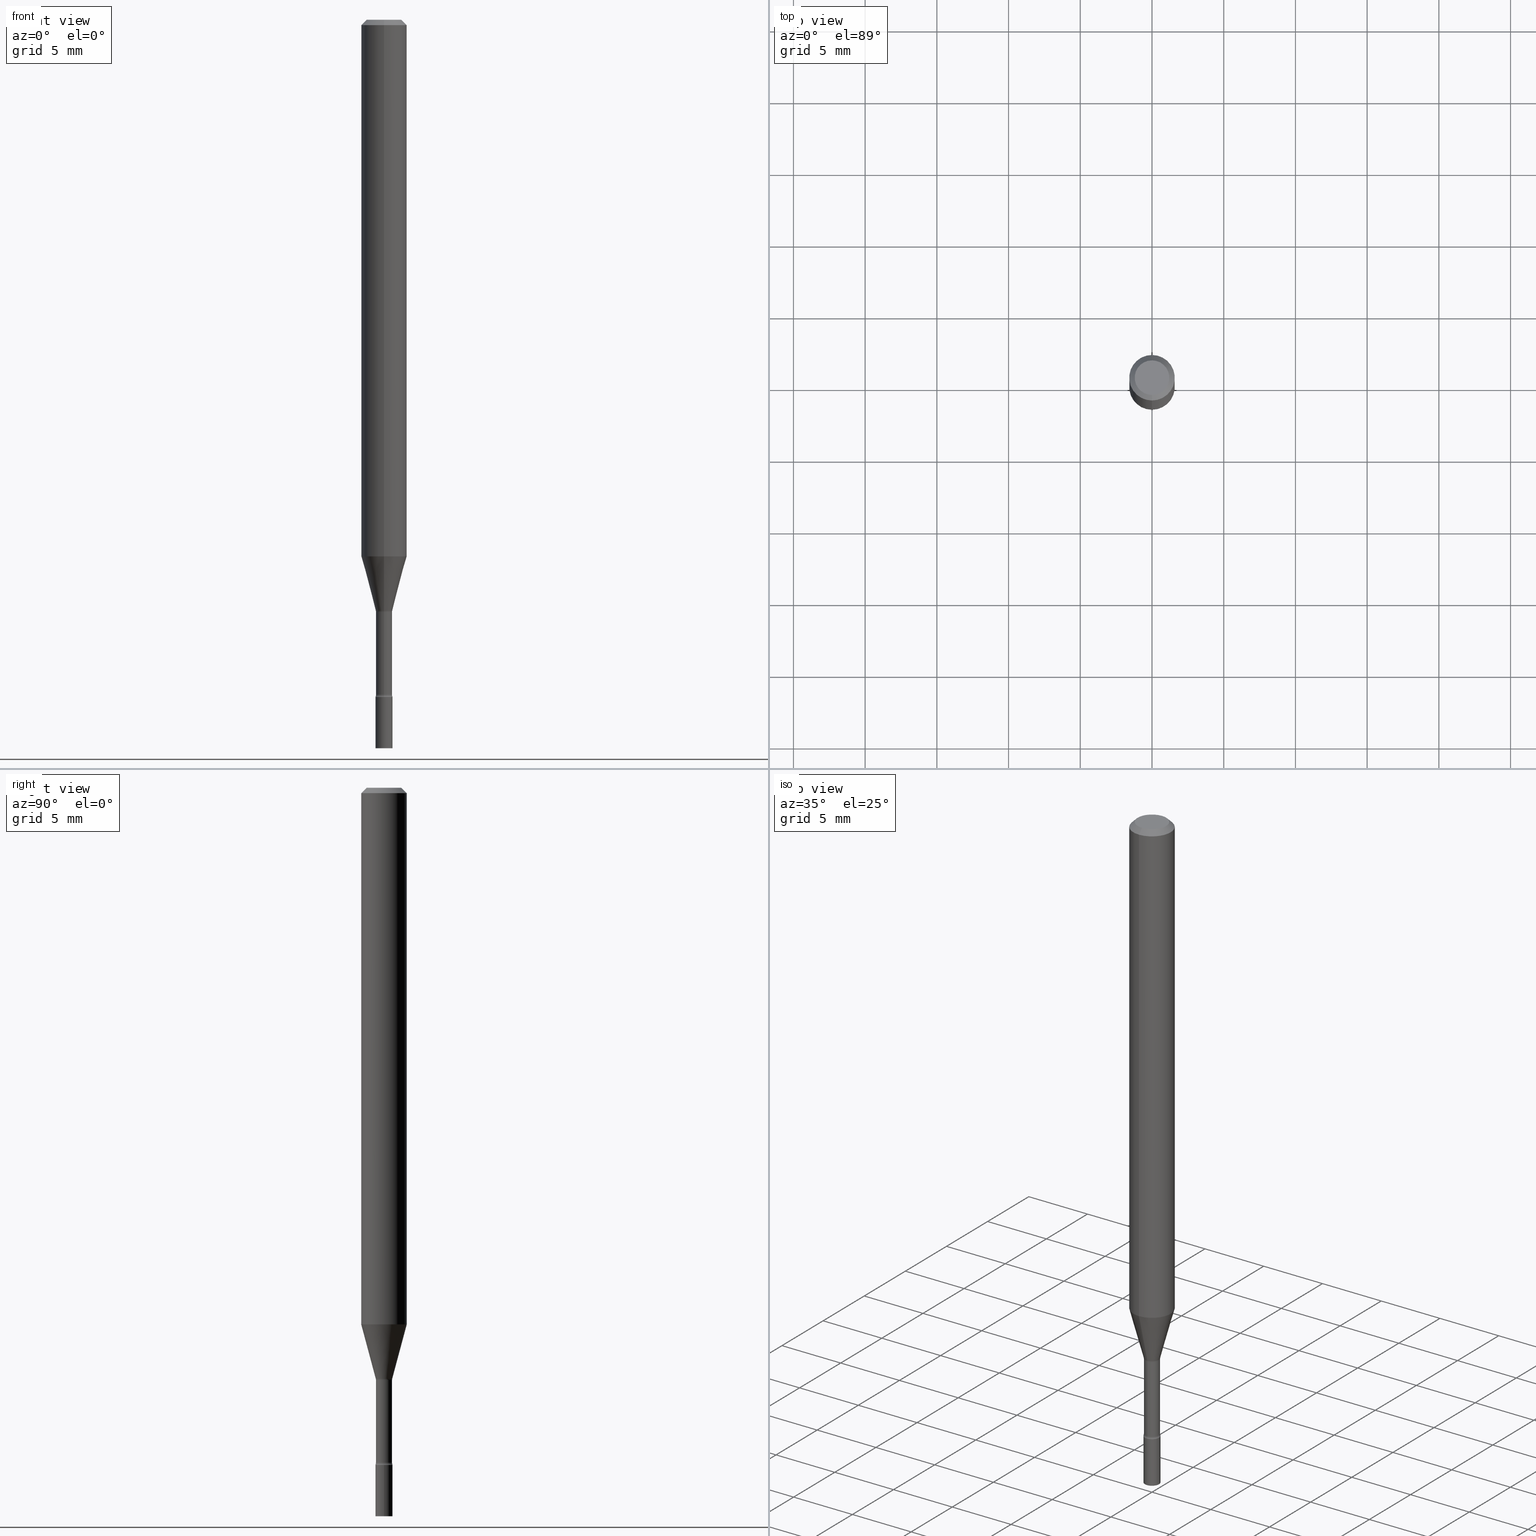
[diagram: canonical four-view strip — front | top / right | iso, engineering-drawing reading convention]
A machine part, canonical four-view strip (front | top / right | iso — engineering-drawing reading convention). The complete STEP part file that produces these views, byte-faithful:
ISO-10303-21;
HEADER;
FILE_DESCRIPTION (( 'STEP AP203' ),
    '1' );
FILE_NAME ('09857.STEP',
    '2024-03-09T02:23:17',
    ( '' ),
    ( '' ),
    'SwSTEP 2.0',
    'SolidWorks 2023',
    '' );
FILE_SCHEMA (( 'CONFIG_CONTROL_DESIGN' ));
ENDSEC;

DATA;
#1 = VECTOR ( 'NONE', #511, 39.37007874015748143 ) ;
#2 = CIRCLE ( 'NONE', #391, 0.02261111260566397996 ) ;
#3 = CARTESIAN_POINT ( 'NONE',  ( -1.543234751768266986E-16, -0.02210000000000567413, -1.625974787463811078 ) ) ;
#4 = DIRECTION ( 'NONE',  ( 1.000000000000000000, -6.982962677686265922E-15, 4.876176775795935793E-29 ) ) ;
#5 = ORIENTED_EDGE ( 'NONE', *, *, #186, .T. ) ;
#6 = FACE_OUTER_BOUND ( 'NONE', #217, .T. ) ;
#7 = ORIENTED_EDGE ( 'NONE', *, *, #470, .F. ) ;
#8 = CONICAL_SURFACE ( 'NONE', #497, 0.06250000000000000000, 0.7853981633974483900 ) ;
#9 = AXIS2_PLACEMENT_3D ( 'NONE', #245, #100, #424 ) ;
#10 = DIRECTION ( 'NONE',  ( 1.000000000000000000, -6.982962677686265922E-15, 4.876176775795935793E-29 ) ) ;
#11 = ORIENTED_EDGE ( 'NONE', *, *, #475, .T. ) ;
#12 = DIRECTION ( 'NONE',  ( -1.000000000000000000, 6.982962677686265922E-15, -4.883557194083112340E-29 ) ) ;
#13 = ORIENTED_EDGE ( 'NONE', *, *, #412, .T. ) ;
#14 = FACE_OUTER_BOUND ( 'NONE', #122, .T. ) ;
#15 = EDGE_LOOP ( 'NONE', ( #471, #161, #368, #103 ) ) ;
#16 = TOROIDAL_SURFACE ( 'NONE', #126, 0.03710000000000000103, 0.01500000000000002720 ) ;
#17 = FACE_OUTER_BOUND ( 'NONE', #334, .T. ) ;
#18 = ORIENTED_EDGE ( 'NONE', *, *, #415, .F. ) ;
#19 = DIRECTION ( 'NONE',  ( -2.445478591985838029E-29, 3.491467325019567696E-15, 1.000000000000000000 ) ) ;
#20 = DIRECTION ( 'NONE',  ( -1.807323732225329350E-15, -0.2588190451025180194, 0.9659258262890689783 ) ) ;
#21 = EDGE_CURVE ( 'NONE', #180, #413, #65, .T. ) ;
#22 = DIRECTION ( 'NONE',  ( -6.982962677686265922E-15, -1.000000000000000000, 3.491467325019567696E-15 ) ) ;
#23 = DIRECTION ( 'NONE',  ( -2.445468806185136597E-29, 3.491481338843145583E-15, 1.000000000000000000 ) ) ;
#24 = AXIS2_PLACEMENT_3D ( 'NONE', #278, #437, #69 ) ;
#25 = ORIENTED_EDGE ( 'NONE', *, *, #495, .F. ) ;
#26 = ADVANCED_FACE ( 'NONE', ( #228 ), #350, .T. ) ;
#27 = PERSON_AND_ORGANIZATION_ROLE ( 'design_supplier' ) ;
#28 = FACE_OUTER_BOUND ( 'NONE', #450, .T. ) ;
#29 = EDGE_CURVE ( 'NONE', #146, #87, #348, .T. ) ;
#30 = APPROVAL_STATUS ( 'not_yet_approved' ) ;
#31 = CARTESIAN_POINT ( 'NONE',  ( -2.590679153421155323E-16, -0.03710000000000652359, -1.852672283192177582 ) ) ;
#32 = PERSON_AND_ORGANIZATION ( #183, #406 ) ;
#33 = DIRECTION ( 'NONE',  ( -2.445478591985838029E-29, 3.491467325019567696E-15, 1.000000000000000000 ) ) ;
#34 = AXIS2_PLACEMENT_3D ( 'NONE', #409, #163, #43 ) ;
#35 = COORDINATED_UNIVERSAL_TIME_OFFSET ( 5, 0, .BEHIND. ) ;
#36 = CARTESIAN_POINT ( 'NONE',  ( 4.530670406511994597E-29, -6.468544740734887756E-15, -1.852672283192177582 ) ) ;
#37 = APPROVAL_STATUS ( 'not_yet_approved' ) ;
#38 = CC_DESIGN_PERSON_AND_ORGANIZATION_ASSIGNMENT ( #356, #200, ( #274 ) ) ;
#39 = CARTESIAN_POINT ( 'NONE',  ( -4.287811248607203282E-16, -0.06250000000000005551, -0.01499999999999981209 ) ) ;
#40 = FACE_OUTER_BOUND ( 'NONE', #383, .T. ) ;
#41 = AXIS2_PLACEMENT_3D ( 'NONE', #519, #158, #285 ) ;
#42 = CC_DESIGN_APPROVAL ( #177, ( #274 ) ) ;
#43 = DIRECTION ( 'NONE',  ( 1.000000000000000000, -6.982962677686269866E-15, 0.000000000000000000 ) ) ;
#44 = ORIENTED_EDGE ( 'NONE', *, *, #307, .T. ) ;
#45 = FACE_OUTER_BOUND ( 'NONE', #164, .T. ) ;
#46 = EDGE_LOOP ( 'NONE', ( #125, #420, #13, #268 ) ) ;
#47 = FACE_OUTER_BOUND ( 'NONE', #15, .T. ) ;
#48 = ORIENTED_EDGE ( 'NONE', *, *, #283, .T. ) ;
#49 = TOROIDAL_SURFACE ( 'NONE', #134, 0.03710000000000005654, 0.01499999999999999077 ) ;
#50 = SECURITY_CLASSIFICATION ( '', '', #149 ) ;
#51 = PLANE ( 'NONE',  #327 ) ;
#52 = ORIENTED_EDGE ( 'NONE', *, *, #503, .T. ) ;
#53 = VERTEX_POINT ( 'NONE', #472 ) ;
#54 = DIRECTION ( 'NONE',  ( -6.982962677686265922E-15, -1.000000000000000000, 0.000000000000000000 ) ) ;
#55 = DIRECTION ( 'NONE',  ( 1.000000000000000000, -6.982962677686269866E-15, 0.000000000000000000 ) ) ;
#56 = VECTOR ( 'NONE', #449, 39.37007874015748143 ) ;
#57 = CARTESIAN_POINT ( 'NONE',  ( 3.966792487341526174E-29, -5.663482968149508762E-15, -1.622092501787272933 ) ) ;
#58 = ADVANCED_FACE ( 'NONE', ( #234 ), #144, .F. ) ;
#59 = ORIENTED_EDGE ( 'NONE', *, *, #218, .F. ) ;
#60 = ADVANCED_FACE ( 'NONE', ( #387 ), #16, .F. ) ;
#61 = CARTESIAN_POINT ( 'NONE',  ( 4.530652276630265840E-29, -6.468570703757412318E-15, -1.852672283192177582 ) ) ;
#62 = ORIENTED_EDGE ( 'NONE', *, *, #307, .F. ) ;
#63 = DIRECTION ( 'NONE',  ( 7.105427357601001859E-15, 1.000000000000000000, 0.000000000000000000 ) ) ;
#64 = DIRECTION ( 'NONE',  ( -2.445468806185136597E-29, 3.491481338843145583E-15, 1.000000000000000000 ) ) ;
#65 = CIRCLE ( 'NONE', #106, 0.02350000000000000352 ) ;
#66 = CARTESIAN_POINT ( 'NONE',  ( 0.000000000000000000, 0.000000000000000000, 0.000000000000000000 ) ) ;
#67 = AXIS2_PLACEMENT_3D ( 'NONE', #454, #88, #207 ) ;
#68 = EDGE_CURVE ( 'NONE', #308, #105, #425, .T. ) ;
#69 = DIRECTION ( 'NONE',  ( -6.982962677686265922E-15, -1.000000000000000000, 3.491467325019567696E-15 ) ) ;
#70 = CALENDAR_DATE ( 2024, 8, 3 ) ;
#71 = DIRECTION ( 'NONE',  ( -2.445478591985838029E-29, 3.491467325019567696E-15, 1.000000000000000000 ) ) ;
#72 = SHAPE_DEFINITION_REPRESENTATION ( #419, #398 ) ;
#73 = EDGE_CURVE ( 'NONE', #294, #287, #232, .T. ) ;
#74 = CARTESIAN_POINT ( 'NONE',  ( 3.668217887978764348E-31, -5.237200987529362293E-17, -0.01500000000000003067 ) ) ;
#75 = CONICAL_SURFACE ( 'NONE', #320, 0.02261111260566397996, 0.2617993877991501850 ) ;
#76 = CALENDAR_DATE ( 2024, 8, 3 ) ;
#77 = DIRECTION ( 'NONE',  ( 1.000000000000000000, -7.105427357601001070E-15, 4.926315336922240552E-29 ) ) ;
#78 = CARTESIAN_POINT ( 'NONE',  ( 3.668217887978764348E-31, -5.237200987529362293E-17, -0.01500000000000003067 ) ) ;
#79 = ADVANCED_FACE ( 'NONE', ( #394 ), #301, .T. ) ;
#80 = LINE ( 'NONE', #211, #108 ) ;
#81 = ORIENTED_EDGE ( 'NONE', *, *, #73, .T. ) ;
#82 = AXIS2_PLACEMENT_3D ( 'NONE', #404, #515, #357 ) ;
#83 = CIRCLE ( 'NONE', #364, 0.02350000000000000352 ) ;
#84 = DIRECTION ( 'NONE',  ( -2.445478591985838029E-29, 3.491467325019567696E-15, 1.000000000000000000 ) ) ;
#85 = EDGE_LOOP ( 'NONE', ( #93, #25, #140, #48 ) ) ;
#86 = CARTESIAN_POINT ( 'NONE',  ( -2.590679153421207585E-16, -0.03710000000000568399, -1.625974787463811078 ) ) ;
#87 = VERTEX_POINT ( 'NONE', #111 ) ;
#88 = DIRECTION ( 'NONE',  ( -2.445478591985838029E-29, 3.491467325019567696E-15, 1.000000000000000000 ) ) ;
#89 = EDGE_CURVE ( 'NONE', #413, #53, #242, .T. ) ;
#90 = ORIENTED_EDGE ( 'NONE', *, *, #235, .T. ) ;
#91 = CIRCLE ( 'NONE', #233, 0.06250000000000000000 ) ;
#92 = APPROVAL_PERSON_ORGANIZATION ( #309, #319, #439 ) ;
#93 = ORIENTED_EDGE ( 'NONE', *, *, #173, .F. ) ;
#94 = CARTESIAN_POINT ( 'NONE',  ( -1.578925554262733618E-16, -0.02261111260566964209, -1.622092501787272933 ) ) ;
#95 = EDGE_CURVE ( 'NONE', #105, #308, #91, .T. ) ;
#96 = CARTESIAN_POINT ( 'NONE',  ( 0.000000000000000000, 0.000000000000000000, 0.000000000000000000 ) ) ;
#97 = DIRECTION ( 'NONE',  ( -2.445478591985838029E-29, 3.491467325019567696E-15, 1.000000000000000000 ) ) ;
#98 = CIRCLE ( 'NONE', #273, 0.02350000000000000352 ) ;
#99 = AXIS2_PLACEMENT_3D ( 'NONE', #430, #347, #469 ) ;
#100 = DIRECTION ( 'NONE',  ( -2.445478591985838029E-29, 3.491467325019567696E-15, 1.000000000000000000 ) ) ;
#101 = DIRECTION ( 'NONE',  ( -2.445478591985838029E-29, 3.491467325019567696E-15, 1.000000000000000000 ) ) ;
#102 = DIRECTION ( 'NONE',  ( -2.445478591985838029E-29, 3.491467325019567696E-15, 1.000000000000000000 ) ) ;
#103 = ORIENTED_EDGE ( 'NONE', *, *, #29, .F. ) ;
#104 = COORDINATED_UNIVERSAL_TIME_OFFSET ( 5, 0, .BEHIND. ) ;
#105 = VERTEX_POINT ( 'NONE', #109 ) ;
#106 = AXIS2_PLACEMENT_3D ( 'NONE', #467, #64, #55 ) ;
#107 = APPLICATION_PROTOCOL_DEFINITION ( 'international standard', 'config_control_design', 1994, #302 ) ;
#108 = VECTOR ( 'NONE', #372, 39.37007874015748143 ) ;
#109 = CARTESIAN_POINT ( 'NONE',  ( -4.364351673553912750E-16, -0.06250000000000005551, -0.01499999999999981209 ) ) ;
#110 = CARTESIAN_POINT ( 'NONE',  ( 0.000000000000000000, 0.000000000000000000, 0.000000000000000000 ) ) ;
#111 = CARTESIAN_POINT ( 'NONE',  ( -4.364351673553557762E-16, -0.06250000000000517641, -1.473225147374217503 ) ) ;
#112 = EDGE_CURVE ( 'NONE', #455, #507, #482, .T. ) ;
#113 = COORDINATED_UNIVERSAL_TIME_OFFSET ( 5, 0, .BEHIND. ) ;
#114 = DIRECTION ( 'NONE',  ( -6.982962677686265922E-15, -1.000000000000000000, 0.000000000000000000 ) ) ;
#115 = ADVANCED_FACE ( 'NONE', ( #276 ), #75, .T. ) ;
#116 = MECHANICAL_CONTEXT ( 'NONE', #254, 'mechanical' ) ;
#117 = CARTESIAN_POINT ( 'NONE',  ( -1.543234751768666594E-16, -0.02210000000000002587, 7.716142788293254101E-17 ) ) ;
#118 = VECTOR ( 'NONE', #279, 39.37007874015748143 ) ;
#119 = CIRCLE ( 'NONE', #452, 0.02350000000000000352 ) ;
#120 = CARTESIAN_POINT ( 'NONE',  ( 4.530652276630265840E-29, -6.468570703757412318E-15, -1.852672283192177582 ) ) ;
#121 = DIRECTION ( 'NONE',  ( -2.445478591985838029E-29, 3.491467325019567696E-15, 1.000000000000000000 ) ) ;
#122 = EDGE_LOOP ( 'NONE', ( #138, #423, #5, #377 ) ) ;
#123 = CC_DESIGN_DATE_AND_TIME_ASSIGNMENT ( #191, #354, ( #50 ) ) ;
#124 = CARTESIAN_POINT ( 'NONE',  ( 3.966792487341526174E-29, -5.663482968149508762E-15, -1.622092501787272933 ) ) ;
#125 = ORIENTED_EDGE ( 'NONE', *, *, #235, .F. ) ;
#126 = AXIS2_PLACEMENT_3D ( 'NONE', #270, #182, #22 ) ;
#127 = LINE ( 'NONE', #288, #56 ) ;
#128 = EDGE_LOOP ( 'NONE', ( #496, #457, #212, #342 ) ) ;
#129 = CARTESIAN_POINT ( 'NONE',  ( -0.02350000000000000352, -6.569835700394226398E-15, -1.858999999999999986 ) ) ;
#130 = ORIENTED_EDGE ( 'NONE', *, *, #250, .F. ) ;
#131 = CARTESIAN_POINT ( 'NONE',  ( 4.440892098500988052E-16, 0.06249999999999993755, -0.01500000000000024751 ) ) ;
#132 = ORIENTED_EDGE ( 'NONE', *, *, #396, .F. ) ;
#133 = AXIS2_PLACEMENT_3D ( 'NONE', #86, #12, #251 ) ;
#134 = AXIS2_PLACEMENT_3D ( 'NONE', #120, #71, #197 ) ;
#135 = AXIS2_PLACEMENT_3D ( 'NONE', #124, #281, #375 ) ;
#136 = ORIENTED_EDGE ( 'NONE', *, *, #29, .T. ) ;
#137 = CYLINDRICAL_SURFACE ( 'NONE', #436, 0.02350000000000000352 ) ;
#138 = ORIENTED_EDGE ( 'NONE', *, *, #461, .F. ) ;
#139 = LENGTH_MEASURE_WITH_UNIT ( LENGTH_MEASURE( 0.02539999999999999897 ), #385 );
#140 = ORIENTED_EDGE ( 'NONE', *, *, #298, .T. ) ;
#141 = CIRCLE ( 'NONE', #195, 0.01500000000000002720 ) ;
#142 = APPROVAL_PERSON_ORGANIZATION ( #477, #312, #277 ) ;
#143 =( NAMED_UNIT ( * ) SI_UNIT ( $, .STERADIAN. ) SOLID_ANGLE_UNIT ( ) );
#144 = PLANE ( 'NONE',  #512 ) ;
#145 = DIRECTION ( 'NONE',  ( -6.982962677686265922E-15, -1.000000000000000000, 3.491467325019567696E-15 ) ) ;
#146 = VERTEX_POINT ( 'NONE', #156 ) ;
#147 = ADVANCED_FACE ( 'NONE', ( #28 ), #49, .F. ) ;
#148 = DIRECTION ( 'NONE',  ( -6.982962677686265922E-15, -1.000000000000000000, 3.483106191921935554E-15 ) ) ;
#149 = SECURITY_CLASSIFICATION_LEVEL ( 'unclassified' ) ;
#150 = LOCAL_TIME ( 21, 23, 17.00000000000000000, #104 ) ;
#151 = DIRECTION ( 'NONE',  ( -6.982962677686266711E-15, -1.000000000000000000, 3.491467325019567302E-15 ) ) ;
#152 = DATE_AND_TIME ( #70, #150 ) ;
#153 = CARTESIAN_POINT ( 'NONE',  ( 3.966792487341526174E-29, -5.663482968149508762E-15, -1.622092501787272933 ) ) ;
#154 = APPROVAL_DATE_TIME ( #196, #177 ) ;
#155 = CC_DESIGN_PERSON_AND_ORGANIZATION_ASSIGNMENT ( #395, #358, ( #50 ) ) ;
#156 = CARTESIAN_POINT ( 'NONE',  ( -1.578925554262733618E-16, -0.02261111260566964209, -1.622092501787272933 ) ) ;
#157 = CALENDAR_DATE ( 2024, 8, 3 ) ;
#158 = DIRECTION ( 'NONE',  ( -2.445478591985838029E-29, 3.491467325019567696E-15, 1.000000000000000000 ) ) ;
#159 = AXIS2_PLACEMENT_3D ( 'NONE', #328, #247, #169 ) ;
#160 = CARTESIAN_POINT ( 'NONE',  ( -1.543234751768215957E-16, -0.02210000000000652762, -1.852672283192177582 ) ) ;
#161 = ORIENTED_EDGE ( 'NONE', *, *, #470, .T. ) ;
#162 = ADVANCED_FACE ( 'NONE', ( #402 ), #445, .T. ) ;
#163 = DIRECTION ( 'NONE',  ( -2.445468806185136597E-29, 3.491481338843145583E-15, 1.000000000000000000 ) ) ;
#164 = EDGE_LOOP ( 'NONE', ( #52, #174, #18, #257 ) ) ;
#165 = CYLINDRICAL_SURFACE ( 'NONE', #159, 0.02210000000000002587 ) ;
#166 = ORIENTED_EDGE ( 'NONE', *, *, #343, .T. ) ;
#167 = CIRCLE ( 'NONE', #284, 0.06250000000000000000 ) ;
#168 =( GEOMETRIC_REPRESENTATION_CONTEXT ( 3 ) GLOBAL_UNCERTAINTY_ASSIGNED_CONTEXT ( ( #215 ) ) GLOBAL_UNIT_ASSIGNED_CONTEXT ( ( #227, #259, #143 ) ) REPRESENTATION_CONTEXT ( 'NONE', 'WORKASPACE' ) );
#169 = DIRECTION ( 'NONE',  ( -6.982962677686265922E-15, -1.000000000000000000, 3.491467325019568091E-15 ) ) ;
#170 = ORIENTED_EDGE ( 'NONE', *, *, #21, .T. ) ;
#171 = CARTESIAN_POINT ( 'NONE',  ( 4.546126510698169319E-29, -6.490663808909408226E-15, -1.858999999999999986 ) ) ;
#172 = ORIENTED_EDGE ( 'NONE', *, *, #250, .T. ) ;
#173 = EDGE_CURVE ( 'NONE', #374, #507, #141, .T. ) ;
#174 = ORIENTED_EDGE ( 'NONE', *, *, #323, .T. ) ;
#175 = CIRCLE ( 'NONE', #187, 0.02209999999999999812 ) ;
#176 = ADVANCED_FACE ( 'NONE', ( #280 ), #8, .T. ) ;
#177 = APPROVAL ( #510, 'UNSPECIFIED' ) ;
#178 = LOCAL_TIME ( 21, 23, 17.00000000000000000, #479 ) ;
#179 = CARTESIAN_POINT ( 'NONE',  ( 1.570299446030275612E-16, 0.02209999999999431863, -1.625974787463811078 ) ) ;
#180 = VERTEX_POINT ( 'NONE', #446 ) ;
#181 = CARTESIAN_POINT ( 'NONE',  ( 1.606616180941213573E-16, 0.02261111260565831435, -1.622092501787272933 ) ) ;
#182 = DIRECTION ( 'NONE',  ( -2.445478591985838029E-29, 3.491467325019567696E-15, 1.000000000000000000 ) ) ;
#183 = PERSON ( 'UNSPECIFIED', 'UNSPECIFIED', 'UNSPECIFIED', ('UNSPECIFIED'), ('UNSPECIFIED'), ('UNSPECIFIED') ) ;
#184 = DIRECTION ( 'NONE',  ( -2.445478591985837749E-29, 3.491467325019568091E-15, 1.000000000000000000 ) ) ;
#185 = CARTESIAN_POINT ( 'NONE',  ( 3.668217887978764348E-31, -5.237200987529362293E-17, -0.01500000000000003067 ) ) ;
#186 = EDGE_CURVE ( 'NONE', #294, #260, #203, .T. ) ;
#187 = AXIS2_PLACEMENT_3D ( 'NONE', #331, #209, #253 ) ;
#188 = DIRECTION ( 'NONE',  ( -2.445468806185136597E-29, 3.491481338843145583E-15, 1.000000000000000000 ) ) ;
#189 = ORIENTED_EDGE ( 'NONE', *, *, #112, .F. ) ;
#190 = DIMENSIONAL_EXPONENTS ( 1.000000000000000000, 0.000000000000000000, 0.000000000000000000, 0.000000000000000000, 0.000000000000000000, 0.000000000000000000, 0.000000000000000000 ) ;
#191 = DATE_AND_TIME ( #518, #178 ) ;
#192 = CARTESIAN_POINT ( 'NONE',  ( 1.669775429036689529E-16, 0.02349999999999350525, -1.858999999999999986 ) ) ;
#193 = DATE_AND_TIME ( #76, #241 ) ;
#194 = DIRECTION ( 'NONE',  ( -6.982962677686269077E-15, -1.000000000000000000, 0.000000000000000000 ) ) ;
#195 = AXIS2_PLACEMENT_3D ( 'NONE', #237, #77, #476 ) ;
#196 = DATE_AND_TIME ( #238, #224 ) ;
#197 = DIRECTION ( 'NONE',  ( -6.982962677686265922E-15, -1.000000000000000000, 3.491467325019567696E-15 ) ) ;
#198 = DATE_TIME_ROLE ( 'creation_date' ) ;
#199 = DIRECTION ( 'NONE',  ( -2.445478591985838029E-29, 3.491467325019567696E-15, 1.000000000000000000 ) ) ;
#200 = PERSON_AND_ORGANIZATION_ROLE ( 'creator' ) ;
#201 = CARTESIAN_POINT ( 'NONE',  ( 7.070997803370271275E-46, -1.009542993615190646E-31, -2.891457658448894903E-17 ) ) ;
#202 = MANIFOLD_SOLID_BREP ( 'Body-Move/Copy2[2]', #353 ) ;
#203 = CIRCLE ( 'NONE', #361, 0.01499999999999998904 ) ;
#204 = DIRECTION ( 'NONE',  ( -2.445468806185136877E-29, 3.491481338843145188E-15, 1.000000000000000000 ) ) ;
#205 = VECTOR ( 'NONE', #345, 39.37007874015748143 ) ;
#206 = CC_DESIGN_APPROVAL ( #319, ( #448 ) ) ;
#207 = DIRECTION ( 'NONE',  ( -6.982962677686266711E-15, -1.000000000000000000, 3.491467325019567302E-15 ) ) ;
#208 = EDGE_LOOP ( 'NONE', ( #7, #297, #136, #389 ) ) ;
#209 = DIRECTION ( 'NONE',  ( -2.445478591985838029E-29, 3.491467325019567696E-15, 1.000000000000000000 ) ) ;
#210 = ORIENTED_EDGE ( 'NONE', *, *, #520, .T. ) ;
#211 = CARTESIAN_POINT ( 'NONE',  ( 4.364351673553919652E-16, 0.06249999999999995143, -0.01500000000000024751 ) ) ;
#212 = ORIENTED_EDGE ( 'NONE', *, *, #283, .F. ) ;
#213 = AXIS2_PLACEMENT_3D ( 'NONE', #485, #216, #367 ) ;
#214 = CIRCLE ( 'NONE', #99, 0.02210000000000006057 ) ;
#215 = UNCERTAINTY_MEASURE_WITH_UNIT (LENGTH_MEASURE( 1.000000000000000082E-05 ), #227, 'distance_accuracy_value', 'NONE');
#216 = DIRECTION ( 'NONE',  ( -2.445478591985837749E-29, 3.491467325019568091E-15, 1.000000000000000000 ) ) ;
#217 = EDGE_LOOP ( 'NONE', ( #426, #44 ) ) ;
#218 = EDGE_CURVE ( 'NONE', #455, #294, #466, .T. ) ;
#219 = DIRECTION ( 'NONE',  ( 1.000000000000000000, -7.105427357601001070E-15, 4.926315336922240552E-29 ) ) ;
#220 = ORIENTED_EDGE ( 'NONE', *, *, #218, .T. ) ;
#221 = CARTESIAN_POINT ( 'NONE',  ( 4.890937612370273194E-29, -6.982962677686291165E-15, -2.000000000000000000 ) ) ;
#222 = CARTESIAN_POINT ( 'NONE',  ( 3.316907271900976096E-16, 0.04749999999999999362, -1.803019862306739220E-16 ) ) ;
#223 = CLOSED_SHELL ( 'NONE', ( #335, #363, #487, #229 ) ) ;
#224 = LOCAL_TIME ( 21, 23, 17.00000000000000000, #35 ) ;
#225 = LINE ( 'NONE', #181, #205 ) ;
#226 = DIRECTION ( 'NONE',  ( 2.445478591985837749E-29, -3.491467325019568091E-15, -1.000000000000000000 ) ) ;
#227 =( CONVERSION_BASED_UNIT ( 'INCH', #139 ) LENGTH_UNIT ( ) NAMED_UNIT ( #190 ) );
#228 = FACE_OUTER_BOUND ( 'NONE', #128, .T. ) ;
#229 = ADVANCED_FACE ( 'NONE', ( #351 ), #355, .T. ) ;
#230 = CC_DESIGN_PERSON_AND_ORGANIZATION_ASSIGNMENT ( #401, #315, ( #448 ) ) ;
#231 = LINE ( 'NONE', #378, #258 ) ;
#232 = LINE ( 'NONE', #117, #240 ) ;
#233 = AXIS2_PLACEMENT_3D ( 'NONE', #397, #239, #148 ) ;
#234 = FACE_OUTER_BOUND ( 'NONE', #324, .T. ) ;
#235 = EDGE_CURVE ( 'NONE', #464, #105, #352, .T. ) ;
#236 = PERSON_AND_ORGANIZATION_ROLE ( 'design_owner' ) ;
#237 = CARTESIAN_POINT ( 'NONE',  ( 2.636113549670369152E-16, 0.03709999999999432502, -1.625974787463811078 ) ) ;
#238 = CALENDAR_DATE ( 2024, 8, 3 ) ;
#239 = DIRECTION ( 'NONE',  ( -2.445478591985838029E-29, 3.491467325019567696E-15, 1.000000000000000000 ) ) ;
#240 = VECTOR ( 'NONE', #473, 39.37007874015748143 ) ;
#241 = LOCAL_TIME ( 21, 23, 17.00000000000000000, #113 ) ;
#242 = LINE ( 'NONE', #310, #434 ) ;
#243 = PERSON_AND_ORGANIZATION ( #183, #406 ) ;
#244 = DIRECTION ( 'NONE',  ( -2.445478591985838029E-29, 3.491467325019567696E-15, 1.000000000000000000 ) ) ;
#245 = CARTESIAN_POINT ( 'NONE',  ( 3.976286533851473085E-29, -5.677037841735531897E-15, -1.625974787463811078 ) ) ;
#246 = AXIS2_PLACEMENT_3D ( 'NONE', #66, #101, #295 ) ;
#247 = DIRECTION ( 'NONE',  ( -2.445478591985838029E-29, 3.491467325019567696E-15, 1.000000000000000000 ) ) ;
#248 = AXIS2_PLACEMENT_3D ( 'NONE', #96, #269, #337 ) ;
#249 = ORIENTED_EDGE ( 'NONE', *, *, #400, .F. ) ;
#250 = EDGE_CURVE ( 'NONE', #264, #260, #98, .T. ) ;
#251 = DIRECTION ( 'NONE',  ( -6.982962677686267499E-15, -1.000000000000000000, 0.000000000000000000 ) ) ;
#252 = EDGE_CURVE ( 'NONE', #484, #464, #390, .T. ) ;
#253 = DIRECTION ( 'NONE',  ( -6.982962677686265922E-15, -1.000000000000000000, 0.000000000000000000 ) ) ;
#254 = APPLICATION_CONTEXT ( 'configuration controlled 3d designs of mechanical parts and assemblies' ) ;
#255 = ORIENTED_EDGE ( 'NONE', *, *, #95, .T. ) ;
#256 = FACE_OUTER_BOUND ( 'NONE', #85, .T. ) ;
#257 = ORIENTED_EDGE ( 'NONE', *, *, #89, .F. ) ;
#258 = VECTOR ( 'NONE', #184, 39.37007874015748143 ) ;
#259 =( NAMED_UNIT ( * ) PLANE_ANGLE_UNIT ( ) SI_UNIT ( $, .RADIAN. ) );
#260 = VERTEX_POINT ( 'NONE', #360 ) ;
#261 = DIRECTION ( 'NONE',  ( 1.000000000000000000, -6.982962677686269866E-15, 0.000000000000000000 ) ) ;
#262 = ORIENTED_EDGE ( 'NONE', *, *, #503, .F. ) ;
#263 = DIRECTION ( 'NONE',  ( 1.000000000000000000, -6.982962677686265922E-15, 4.876176775795935793E-29 ) ) ;
#264 = VERTEX_POINT ( 'NONE', #192 ) ;
#265 = CIRCLE ( 'NONE', #133, 0.01500000000000002720 ) ;
#266 = FACE_OUTER_BOUND ( 'NONE', #500, .T. ) ;
#267 = EDGE_CURVE ( 'NONE', #374, #146, #338, .T. ) ;
#268 = ORIENTED_EDGE ( 'NONE', *, *, #68, .T. ) ;
#269 = DIRECTION ( 'NONE',  ( -2.445478591985838029E-29, 3.491467325019567696E-15, 1.000000000000000000 ) ) ;
#270 = CARTESIAN_POINT ( 'NONE',  ( 3.976270622386257300E-29, -5.677060627859345352E-15, -1.625974787463811078 ) ) ;
#271 = COORDINATED_UNIVERSAL_TIME_OFFSET ( 5, 0, .BEHIND. ) ;
#272 = ORIENTED_EDGE ( 'NONE', *, *, #267, .F. ) ;
#273 = AXIS2_PLACEMENT_3D ( 'NONE', #316, #478, #114 ) ;
#274 = PRODUCT_DEFINITION_FORMATION_WITH_SPECIFIED_SOURCE ( 'ANY', '', #359, .NOT_KNOWN. ) ;
#275 = DIRECTION ( 'NONE',  ( 1.000000000000000000, 0.000000000000000000, 0.000000000000000000 ) ) ;
#276 = FACE_OUTER_BOUND ( 'NONE', #208, .T. ) ;
#277 = APPROVAL_ROLE ( '' ) ;
#278 = CARTESIAN_POINT ( 'NONE',  ( 0.000000000000000000, 0.000000000000000000, 0.000000000000000000 ) ) ;
#279 = DIRECTION ( 'NONE',  ( -2.445478591985837749E-29, 3.491467325019568091E-15, 1.000000000000000000 ) ) ;
#280 = FACE_OUTER_BOUND ( 'NONE', #332, .T. ) ;
#281 = DIRECTION ( 'NONE',  ( -2.445478591985838029E-29, 3.491467325019567696E-15, 1.000000000000000000 ) ) ;
#282 = ORIENTED_EDGE ( 'NONE', *, *, #252, .T. ) ;
#283 = EDGE_CURVE ( 'NONE', #287, #507, #175, .T. ) ;
#284 = AXIS2_PLACEMENT_3D ( 'NONE', #291, #121, #325 ) ;
#285 = DIRECTION ( 'NONE',  ( -6.982962677686265922E-15, -1.000000000000000000, 0.000000000000000000 ) ) ;
#286 = CIRCLE ( 'NONE', #498, 0.02350000000000000352 ) ;
#287 = VERTEX_POINT ( 'NONE', #3 ) ;
#288 = CARTESIAN_POINT ( 'NONE',  ( 4.440892098500625669E-16, 0.06250000000000000000, -2.182167078137229810E-16 ) ) ;
#289 = CC_DESIGN_PERSON_AND_ORGANIZATION_ASSIGNMENT ( #243, #27, ( #274 ) ) ;
#290 = ORIENTED_EDGE ( 'NONE', *, *, #412, .F. ) ;
#291 = CARTESIAN_POINT ( 'NONE',  ( 3.602740559078830518E-29, -5.143717464454219042E-15, -1.473225147374217725 ) ) ;
#292 = EDGE_LOOP ( 'NONE', ( #453, #130 ) ) ;
#293 = DIRECTION ( 'NONE',  ( -2.445468806185136597E-29, 3.491481338843145583E-15, 1.000000000000000000 ) ) ;
#294 = VERTEX_POINT ( 'NONE', #160 ) ;
#295 = DIRECTION ( 'NONE',  ( -6.982962677686265922E-15, -1.000000000000000000, 3.491467325019568091E-15 ) ) ;
#296 = CARTESIAN_POINT ( 'NONE',  ( 3.840629472727447874E-16, 0.04749999999999999362, -1.947592745229183872E-16 ) ) ;
#297 = ORIENTED_EDGE ( 'NONE', *, *, #267, .T. ) ;
#298 = EDGE_CURVE ( 'NONE', #146, #287, #265, .T. ) ;
#299 = ADVANCED_FACE ( 'NONE', ( #256 ), #481, .F. ) ;
#300 = ORIENTED_EDGE ( 'NONE', *, *, #400, .T. ) ;
#301 = CONICAL_SURFACE ( 'NONE', #371, 0.06250000000000000000, 0.7853981633974483900 ) ;
#302 = APPLICATION_CONTEXT ( 'configuration controlled 3d designs of mechanical parts and assemblies' ) ;
#303 = CC_DESIGN_APPROVAL ( #312, ( #50 ) ) ;
#304 = CARTESIAN_POINT ( 'NONE',  ( 4.440892098500984107E-16, 0.06249999999999482359, -1.473225147374217947 ) ) ;
#305 = ORIENTED_EDGE ( 'NONE', *, *, #475, .F. ) ;
#306 = DIRECTION ( 'NONE',  ( -6.982962677686265922E-15, -1.000000000000000000, 0.000000000000000000 ) ) ;
#307 = EDGE_CURVE ( 'NONE', #346, #53, #399, .T. ) ;
#308 = VERTEX_POINT ( 'NONE', #131 ) ;
#309 = PERSON_AND_ORGANIZATION ( #183, #406 ) ;
#310 = CARTESIAN_POINT ( 'NONE',  ( 0.02350000000000000352, -1.640996229256272766E-16, 1.145901542312045115E-30 ) ) ;
#311 = CIRCLE ( 'NONE', #67, 0.04749999999999999362 ) ;
#312 = APPROVAL ( #30, 'UNSPECIFIED' ) ;
#313 = APPROVAL_DATE_TIME ( #441, #312 ) ;
#314 = DIRECTION ( 'NONE',  ( -6.982962677686265922E-15, -1.000000000000000000, 0.000000000000000000 ) ) ;
#315 = PERSON_AND_ORGANIZATION_ROLE ( 'creator' ) ;
#316 = CARTESIAN_POINT ( 'NONE',  ( 4.546144702501673568E-29, -6.490637757211377196E-15, -1.858999999999999986 ) ) ;
#317 = PERSON_AND_ORGANIZATION ( #183, #406 ) ;
#318 = DIRECTION ( 'NONE',  ( 6.982962677686265922E-15, 1.000000000000000000, -3.483106191921935554E-15 ) ) ;
#319 = APPROVAL ( #37, 'UNSPECIFIED' ) ;
#320 = AXIS2_PLACEMENT_3D ( 'NONE', #153, #33, #314 ) ;
#321 = DIRECTION ( 'NONE',  ( 2.445478591985838029E-29, -3.491467325019567696E-15, -1.000000000000000000 ) ) ;
#322 = LINE ( 'NONE', #411, #382 ) ;
#323 = EDGE_CURVE ( 'NONE', #180, #346, #322, .T. ) ;
#324 = EDGE_LOOP ( 'NONE', ( #282, #300 ) ) ;
#325 = DIRECTION ( 'NONE',  ( -6.982962677686265922E-15, -1.000000000000000000, 4.370956789862821150E-15 ) ) ;
#326 = EDGE_LOOP ( 'NONE', ( #132, #210, #11, #418 ) ) ;
#327 = AXIS2_PLACEMENT_3D ( 'NONE', #483, #494, #4 ) ;
#328 = CARTESIAN_POINT ( 'NONE',  ( 0.000000000000000000, 0.000000000000000000, 0.000000000000000000 ) ) ;
#329 = CIRCLE ( 'NONE', #384, 0.06250000000000000000 ) ;
#330 = ORIENTED_EDGE ( 'NONE', *, *, #421, .F. ) ;
#331 = CARTESIAN_POINT ( 'NONE',  ( 3.976286533851473085E-29, -5.677037841735531897E-15, -1.625974787463811078 ) ) ;
#332 = EDGE_LOOP ( 'NONE', ( #249, #90, #255, #290 ) ) ;
#333 = DIRECTION ( 'NONE',  ( -6.982962677686265922E-15, -1.000000000000000000, 3.491467325019567696E-15 ) ) ;
#334 = EDGE_LOOP ( 'NONE', ( #379, #170, #491, #62 ) ) ;
#335 = ADVANCED_FACE ( 'NONE', ( #45 ), #405, .T. ) ;
#336 = CC_DESIGN_PERSON_AND_ORGANIZATION_ASSIGNMENT ( #317, #236, ( #359 ) ) ;
#337 = DIRECTION ( 'NONE',  ( -6.982962677686265922E-15, -1.000000000000000000, 3.491467325019567696E-15 ) ) ;
#338 = CIRCLE ( 'NONE', #41, 0.02261111260566397996 ) ;
#339 = ORIENTED_EDGE ( 'NONE', *, *, #186, .F. ) ;
#340 = TOROIDAL_SURFACE ( 'NONE', #489, 0.03710000000000005654, 0.01499999999999999077 ) ;
#341 = DIRECTION ( 'NONE',  ( -6.982962677686265922E-15, -1.000000000000000000, 4.370956789862821150E-15 ) ) ;
#342 = ORIENTED_EDGE ( 'NONE', *, *, #73, .F. ) ;
#343 = EDGE_CURVE ( 'NONE', #87, #504, #167, .T. ) ;
#344 = ADVANCED_FACE ( 'NONE', ( #407 ), #492, .F. ) ;
#345 = DIRECTION ( 'NONE',  ( 1.839019923739599526E-15, 0.2588190451025248473, 0.9659258262890670910 ) ) ;
#346 = VERTEX_POINT ( 'NONE', #129 ) ;
#347 = DIRECTION ( 'NONE',  ( -2.445478591985838029E-29, 3.491467325019567696E-15, 1.000000000000000000 ) ) ;
#348 = LINE ( 'NONE', #94, #458 ) ;
#349 = DIRECTION ( 'NONE',  ( -2.445478591985838029E-29, 3.491467325019567696E-15, 1.000000000000000000 ) ) ;
#350 = CYLINDRICAL_SURFACE ( 'NONE', #246, 0.02210000000000002587 ) ;
#351 = FACE_OUTER_BOUND ( 'NONE', #486, .T. ) ;
#352 = LINE ( 'NONE', #39, #1 ) ;
#353 = CLOSED_SHELL ( 'NONE', ( #60, #26, #147, #176, #432, #381, #115, #162, #79, #58, #344, #508, #366, #299 ) ) ;
#354 = DATE_TIME_ROLE ( 'classification_date' ) ;
#355 = PLANE ( 'NONE',  #82 ) ;
#356 = PERSON_AND_ORGANIZATION ( #183, #406 ) ;
#357 = DIRECTION ( 'NONE',  ( -1.000000000000000000, 6.982962677686265922E-15, -4.876176775795935793E-29 ) ) ;
#358 = PERSON_AND_ORGANIZATION_ROLE ( 'classification_officer' ) ;
#359 = PRODUCT ( '09857', '09857', '', ( #116 ) ) ;
#360 = CARTESIAN_POINT ( 'NONE',  ( -1.640996229255817445E-16, -0.02350000000000649139, -1.858999999999999986 ) ) ;
#361 = AXIS2_PLACEMENT_3D ( 'NONE', #31, #509, #194 ) ;
#362 = AXIS2_PLACEMENT_3D ( 'NONE', #185, #97, #431 ) ;
#363 = ADVANCED_FACE ( 'NONE', ( #6 ), #51, .T. ) ;
#364 = AXIS2_PLACEMENT_3D ( 'NONE', #221, #188, #261 ) ;
#365 = DIRECTION ( 'NONE',  ( -2.445468806185136597E-29, 3.491481338843145583E-15, 1.000000000000000000 ) ) ;
#366 = ADVANCED_FACE ( 'NONE', ( #40 ), #165, .T. ) ;
#367 = DIRECTION ( 'NONE',  ( -6.982962677686265922E-15, -1.000000000000000000, 3.491467325019568091E-15 ) ) ;
#368 = ORIENTED_EDGE ( 'NONE', *, *, #343, .F. ) ;
#369 = CARTESIAN_POINT ( 'NONE',  ( 0.000000000000000000, 0.000000000000000000, 0.000000000000000000 ) ) ;
#370 = ORIENTED_EDGE ( 'NONE', *, *, #173, .T. ) ;
#371 = AXIS2_PLACEMENT_3D ( 'NONE', #74, #321, #517 ) ;
#372 = DIRECTION ( 'NONE',  ( 4.937700262164548042E-15, 0.7071067811865451302, -0.7071067811865499042 ) ) ;
#373 = APPROVAL_PERSON_ORGANIZATION ( #32, #177, #516 ) ;
#374 = VERTEX_POINT ( 'NONE', #417 ) ;
#375 = DIRECTION ( 'NONE',  ( -6.982962677686265922E-15, -1.000000000000000000, 0.000000000000000000 ) ) ;
#376 = MANIFOLD_SOLID_BREP ( 'Body-Move/Copy2[1]', #223 ) ;
#377 = ORIENTED_EDGE ( 'NONE', *, *, #447, .T. ) ;
#378 = CARTESIAN_POINT ( 'NONE',  ( -4.364351673553916201E-16, -0.06250000000000000000, 2.182167078137229810E-16 ) ) ;
#379 = ORIENTED_EDGE ( 'NONE', *, *, #323, .F. ) ;
#380 = CARTESIAN_POINT ( 'NONE',  ( 2.636113549670428316E-16, 0.03709999999999358949, -1.852672283192177582 ) ) ;
#381 = ADVANCED_FACE ( 'NONE', ( #47 ), #416, .T. ) ;
#382 = VECTOR ( 'NONE', #204, 39.37007874015748143 ) ;
#383 = EDGE_LOOP ( 'NONE', ( #189, #220, #81, #330 ) ) ;
#384 = AXIS2_PLACEMENT_3D ( 'NONE', #499, #463, #341 ) ;
#385 =( LENGTH_UNIT ( ) NAMED_UNIT ( * ) SI_UNIT ( $, .METRE. ) );
#386 = ORIENTED_EDGE ( 'NONE', *, *, #298, .F. ) ;
#387 = FACE_OUTER_BOUND ( 'NONE', #460, .T. ) ;
#388 = CYLINDRICAL_SURFACE ( 'NONE', #248, 0.06250000000000000000 ) ;
#389 = ORIENTED_EDGE ( 'NONE', *, *, #520, .F. ) ;
#390 = CIRCLE ( 'NONE', #488, 0.04749999999999999362 ) ;
#391 = AXIS2_PLACEMENT_3D ( 'NONE', #57, #19, #306 ) ;
#392 = APPROVAL_DATE_TIME ( #152, #319 ) ;
#393 = DIRECTION ( 'NONE',  ( -6.982962677686265922E-15, -1.000000000000000000, 0.000000000000000000 ) ) ;
#394 = FACE_OUTER_BOUND ( 'NONE', #46, .T. ) ;
#395 = PERSON_AND_ORGANIZATION ( #183, #406 ) ;
#396 = EDGE_CURVE ( 'NONE', #504, #308, #127, .T. ) ;
#397 = CARTESIAN_POINT ( 'NONE',  ( 3.668217887978764348E-31, -5.237200987529362293E-17, -0.01500000000000003067 ) ) ;
#398 = ADVANCED_BREP_SHAPE_REPRESENTATION ( '09857', ( #376, #202, #468 ), #168 ) ;
#399 = CIRCLE ( 'NONE', #34, 0.02350000000000000352 ) ;
#400 = EDGE_CURVE ( 'NONE', #464, #484, #311, .T. ) ;
#401 = PERSON_AND_ORGANIZATION ( #183, #406 ) ;
#402 = FACE_OUTER_BOUND ( 'NONE', #326, .T. ) ;
#403 = DIRECTION ( 'NONE',  ( 0.000000000000000000, 0.000000000000000000, 1.000000000000000000 ) ) ;
#404 = CARTESIAN_POINT ( 'NONE',  ( 1.640996229256761859E-16, 0.02349999999999301953, -2.000000000000000000 ) ) ;
#405 = CYLINDRICAL_SURFACE ( 'NONE', #451, 0.02350000000000000352 ) ;
#406 = ORGANIZATION ( 'UNSPECIFIED', 'UNSPECIFIED', '' ) ;
#407 = FACE_OUTER_BOUND ( 'NONE', #292, .T. ) ;
#408 = PRODUCT_RELATED_PRODUCT_CATEGORY ( 'detail', '', ( #359 ) ) ;
#409 = CARTESIAN_POINT ( 'NONE',  ( 4.546126510698169319E-29, -6.490663808909408226E-15, -1.858999999999999986 ) ) ;
#410 = ORIENTED_EDGE ( 'NONE', *, *, #21, .F. ) ;
#411 = CARTESIAN_POINT ( 'NONE',  ( -0.02350000000000000352, 1.669775429036235687E-16, -1.155949746209903035E-30 ) ) ;
#412 = EDGE_CURVE ( 'NONE', #484, #308, #80, .T. ) ;
#413 = VERTEX_POINT ( 'NONE', #456 ) ;
#414 = DESIGN_CONTEXT ( 'detailed design', #302, 'design' ) ;
#415 = EDGE_CURVE ( 'NONE', #53, #346, #119, .T. ) ;
#416 = CONICAL_SURFACE ( 'NONE', #135, 0.02261111260566397996, 0.2617993877991501850 ) ;
#417 = CARTESIAN_POINT ( 'NONE',  ( 3.023754139721100812E-16, 0.02261111260565831782, -1.622092501787272933 ) ) ;
#418 = ORIENTED_EDGE ( 'NONE', *, *, #68, .F. ) ;
#419 = PRODUCT_DEFINITION_SHAPE ( 'NONE', 'NONE',  #448 ) ;
#420 = ORIENTED_EDGE ( 'NONE', *, *, #252, .F. ) ;
#421 = EDGE_CURVE ( 'NONE', #507, #287, #427, .T. ) ;
#422 = CARTESIAN_POINT ( 'NONE',  ( 4.546144702501673568E-29, -6.490637757211377196E-15, -1.858999999999999986 ) ) ;
#423 = ORIENTED_EDGE ( 'NONE', *, *, #438, .F. ) ;
#424 = DIRECTION ( 'NONE',  ( -6.982962677686265922E-15, -1.000000000000000000, 0.000000000000000000 ) ) ;
#425 = CIRCLE ( 'NONE', #362, 0.06250000000000000000 ) ;
#426 = ORIENTED_EDGE ( 'NONE', *, *, #415, .T. ) ;
#427 = CIRCLE ( 'NONE', #9, 0.02209999999999999812 ) ;
#428 = CARTESIAN_POINT ( 'NONE',  ( 0.000000000000000000, 0.000000000000000000, 0.000000000000000000 ) ) ;
#429 = ORIENTED_EDGE ( 'NONE', *, *, #396, .T. ) ;
#430 = CARTESIAN_POINT ( 'NONE',  ( 4.530670406511994597E-29, -6.468544740734887756E-15, -1.852672283192177582 ) ) ;
#431 = DIRECTION ( 'NONE',  ( -6.982962677686265922E-15, -1.000000000000000000, 3.483106191921935554E-15 ) ) ;
#432 = ADVANCED_FACE ( 'NONE', ( #266 ), #388, .T. ) ;
#433 = ORIENTED_EDGE ( 'NONE', *, *, #421, .T. ) ;
#434 = VECTOR ( 'NONE', #440, 39.37007874015748143 ) ;
#435 = AXIS2_PLACEMENT_3D ( 'NONE', #380, #219, #63 ) ;
#436 = AXIS2_PLACEMENT_3D ( 'NONE', #428, #23, #263 ) ;
#437 = DIRECTION ( 'NONE',  ( -2.445478591985838029E-29, 3.491467325019567696E-15, 1.000000000000000000 ) ) ;
#438 = EDGE_CURVE ( 'NONE', #294, #455, #214, .T. ) ;
#439 = APPROVAL_ROLE ( '' ) ;
#440 = DIRECTION ( 'NONE',  ( -2.445468806185136877E-29, 3.491481338843145188E-15, 1.000000000000000000 ) ) ;
#441 = DATE_AND_TIME ( #157, #444 ) ;
#442 = DIRECTION ( 'NONE',  ( 2.445478591985838029E-29, -3.491467325019567696E-15, -1.000000000000000000 ) ) ;
#443 = AXIS2_PLACEMENT_3D ( 'NONE', #36, #199, #393 ) ;
#444 = LOCAL_TIME ( 21, 23, 17.00000000000000000, #271 ) ;
#445 = CYLINDRICAL_SURFACE ( 'NONE', #24, 0.06250000000000000000 ) ;
#446 = CARTESIAN_POINT ( 'NONE',  ( -0.02350000000000000352, -6.569835700394226398E-15, -2.000000000000000000 ) ) ;
#447 = EDGE_CURVE ( 'NONE', #260, #264, #286, .T. ) ;
#448 = PRODUCT_DEFINITION ( 'UNKNOWN', '', #274, #414 ) ;
#449 = DIRECTION ( 'NONE',  ( -2.445478591985837749E-29, 3.491467325019568091E-15, 1.000000000000000000 ) ) ;
#450 = EDGE_LOOP ( 'NONE', ( #59, #502, #172, #339 ) ) ;
#451 = AXIS2_PLACEMENT_3D ( 'NONE', #369, #365, #10 ) ;
#452 = AXIS2_PLACEMENT_3D ( 'NONE', #171, #293, #459 ) ;
#453 = ORIENTED_EDGE ( 'NONE', *, *, #447, .F. ) ;
#454 = CARTESIAN_POINT ( 'NONE',  ( 7.070997803370271275E-46, -1.009542993615190646E-31, -2.891457658448894903E-17 ) ) ;
#455 = VERTEX_POINT ( 'NONE', #506 ) ;
#456 = CARTESIAN_POINT ( 'NONE',  ( 0.02350000000000000352, -7.147062300611918023E-15, -2.000000000000000000 ) ) ;
#457 = ORIENTED_EDGE ( 'NONE', *, *, #112, .T. ) ;
#458 = VECTOR ( 'NONE', #20, 39.37007874015749564 ) ;
#459 = DIRECTION ( 'NONE',  ( 1.000000000000000000, -6.982962677686269866E-15, 0.000000000000000000 ) ) ;
#460 = EDGE_LOOP ( 'NONE', ( #272, #370, #433, #386 ) ) ;
#461 = EDGE_CURVE ( 'NONE', #455, #264, #505, .T. ) ;
#462 = CC_DESIGN_DATE_AND_TIME_ASSIGNMENT ( #193, #198, ( #448 ) ) ;
#463 = DIRECTION ( 'NONE',  ( -2.445478591985838029E-29, 3.491467325019567696E-15, 1.000000000000000000 ) ) ;
#464 = VERTEX_POINT ( 'NONE', #465 ) ;
#465 = CARTESIAN_POINT ( 'NONE',  ( -3.773273898774340269E-16, -0.04749999999999999362, 1.369301213539405015E-16 ) ) ;
#466 = CIRCLE ( 'NONE', #443, 0.02210000000000006057 ) ;
#467 = CARTESIAN_POINT ( 'NONE',  ( 4.890937612370273194E-29, -6.982962677686291165E-15, -2.000000000000000000 ) ) ;
#468 = AXIS2_PLACEMENT_3D ( 'NONE', #110, #403, #275 ) ;
#469 = DIRECTION ( 'NONE',  ( -6.982962677686265922E-15, -1.000000000000000000, 0.000000000000000000 ) ) ;
#470 = EDGE_CURVE ( 'NONE', #374, #504, #225, .T. ) ;
#471 = ORIENTED_EDGE ( 'NONE', *, *, #495, .T. ) ;
#472 = CARTESIAN_POINT ( 'NONE',  ( 0.02350000000000000352, -6.654763431835035084E-15, -1.858999999999999986 ) ) ;
#473 = DIRECTION ( 'NONE',  ( -2.445478591985837749E-29, 3.491467325019568091E-15, 1.000000000000000000 ) ) ;
#474 = AXIS2_PLACEMENT_3D ( 'NONE', #490, #84, #333 ) ;
#475 = EDGE_CURVE ( 'NONE', #87, #105, #231, .T. ) ;
#476 = DIRECTION ( 'NONE',  ( 7.105427357601001859E-15, 1.000000000000000000, 0.000000000000000000 ) ) ;
#477 = PERSON_AND_ORGANIZATION ( #183, #406 ) ;
#478 = DIRECTION ( 'NONE',  ( -2.445478591985838029E-29, 3.491467325019567696E-15, 1.000000000000000000 ) ) ;
#479 = COORDINATED_UNIVERSAL_TIME_OFFSET ( 5, 0, .BEHIND. ) ;
#480 = CARTESIAN_POINT ( 'NONE',  ( 1.570299446029823003E-16, 0.02210000000000002587, -7.716142788293254101E-17 ) ) ;
#481 = TOROIDAL_SURFACE ( 'NONE', #474, 0.03710000000000000103, 0.01500000000000002720 ) ;
#482 = LINE ( 'NONE', #480, #118 ) ;
#483 = CARTESIAN_POINT ( 'NONE',  ( 4.546126510698169319E-29, -6.490663808909408226E-15, -1.858999999999999986 ) ) ;
#484 = VERTEX_POINT ( 'NONE', #296 ) ;
#485 = CARTESIAN_POINT ( 'NONE',  ( 1.640996229256727347E-16, 0.02349999999999350872, -1.858999999999999986 ) ) ;
#486 = EDGE_LOOP ( 'NONE', ( #262, #410 ) ) ;
#487 = ADVANCED_FACE ( 'NONE', ( #17 ), #137, .T. ) ;
#488 = AXIS2_PLACEMENT_3D ( 'NONE', #201, #244, #151 ) ;
#489 = AXIS2_PLACEMENT_3D ( 'NONE', #61, #349, #145 ) ;
#490 = CARTESIAN_POINT ( 'NONE',  ( 3.976270622386257300E-29, -5.677060627859345352E-15, -1.625974787463811078 ) ) ;
#491 = ORIENTED_EDGE ( 'NONE', *, *, #89, .T. ) ;
#492 = PLANE ( 'NONE',  #213 ) ;
#493 = ORIENTED_EDGE ( 'NONE', *, *, #95, .F. ) ;
#494 = DIRECTION ( 'NONE',  ( -2.438088387897960049E-29, 3.491481338843145188E-15, 1.000000000000000000 ) ) ;
#495 = EDGE_CURVE ( 'NONE', #146, #374, #2, .T. ) ;
#496 = ORIENTED_EDGE ( 'NONE', *, *, #438, .T. ) ;
#497 = AXIS2_PLACEMENT_3D ( 'NONE', #78, #442, #318 ) ;
#498 = AXIS2_PLACEMENT_3D ( 'NONE', #422, #102, #54 ) ;
#499 = CARTESIAN_POINT ( 'NONE',  ( 3.602740559078830518E-29, -5.143717464454219042E-15, -1.473225147374217725 ) ) ;
#500 = EDGE_LOOP ( 'NONE', ( #166, #429, #493, #305 ) ) ;
#501 = DIRECTION ( 'NONE',  ( 6.982962677686265922E-15, 1.000000000000000000, -3.491467325019568091E-15 ) ) ;
#502 = ORIENTED_EDGE ( 'NONE', *, *, #461, .T. ) ;
#503 = EDGE_CURVE ( 'NONE', #413, #180, #83, .T. ) ;
#504 = VERTEX_POINT ( 'NONE', #304 ) ;
#505 = CIRCLE ( 'NONE', #435, 0.01499999999999998904 ) ;
#506 = CARTESIAN_POINT ( 'NONE',  ( 1.620037437533484049E-16, 0.02209999999999359352, -1.852672283192177582 ) ) ;
#507 = VERTEX_POINT ( 'NONE', #179 ) ;
#508 = ADVANCED_FACE ( 'NONE', ( #14 ), #340, .F. ) ;
#509 = DIRECTION ( 'NONE',  ( -1.000000000000000000, 6.982962677686265922E-15, -4.883557194083112340E-29 ) ) ;
#510 = APPROVAL_STATUS ( 'not_yet_approved' ) ;
#511 = DIRECTION ( 'NONE',  ( -4.851104656540964275E-15, -0.7071067811865500152, -0.7071067811865450192 ) ) ;
#512 = AXIS2_PLACEMENT_3D ( 'NONE', #222, #226, #501 ) ;
#513 = CC_DESIGN_SECURITY_CLASSIFICATION ( #50, ( #274 ) ) ;
#514 = APPLICATION_PROTOCOL_DEFINITION ( 'international standard', 'config_control_design', 1994, #254 ) ;
#515 = DIRECTION ( 'NONE',  ( 2.438088387897960049E-29, -3.491481338843145188E-15, -1.000000000000000000 ) ) ;
#516 = APPROVAL_ROLE ( '' ) ;
#517 = DIRECTION ( 'NONE',  ( 6.982962677686265922E-15, 1.000000000000000000, -3.483106191921935554E-15 ) ) ;
#518 = CALENDAR_DATE ( 2024, 8, 3 ) ;
#519 = CARTESIAN_POINT ( 'NONE',  ( 3.966792487341526174E-29, -5.663482968149508762E-15, -1.622092501787272933 ) ) ;
#520 = EDGE_CURVE ( 'NONE', #504, #87, #329, .T. ) ;
ENDSEC;
END-ISO-10303-21;
